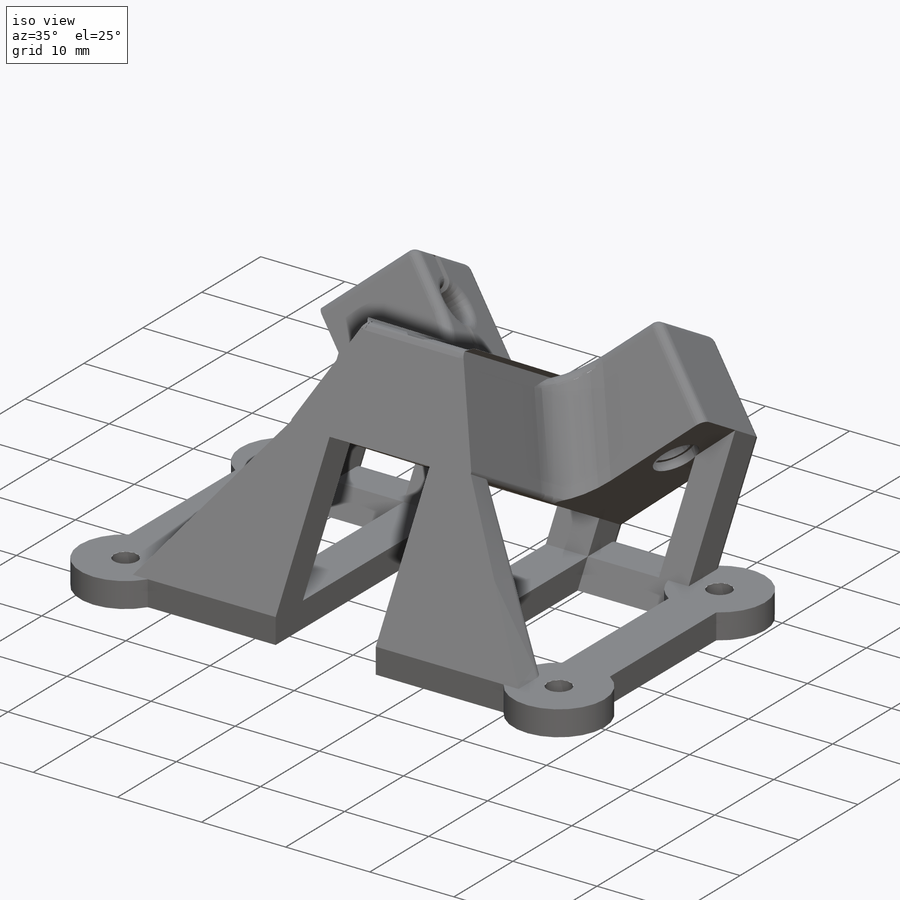
[diagram: iso view]
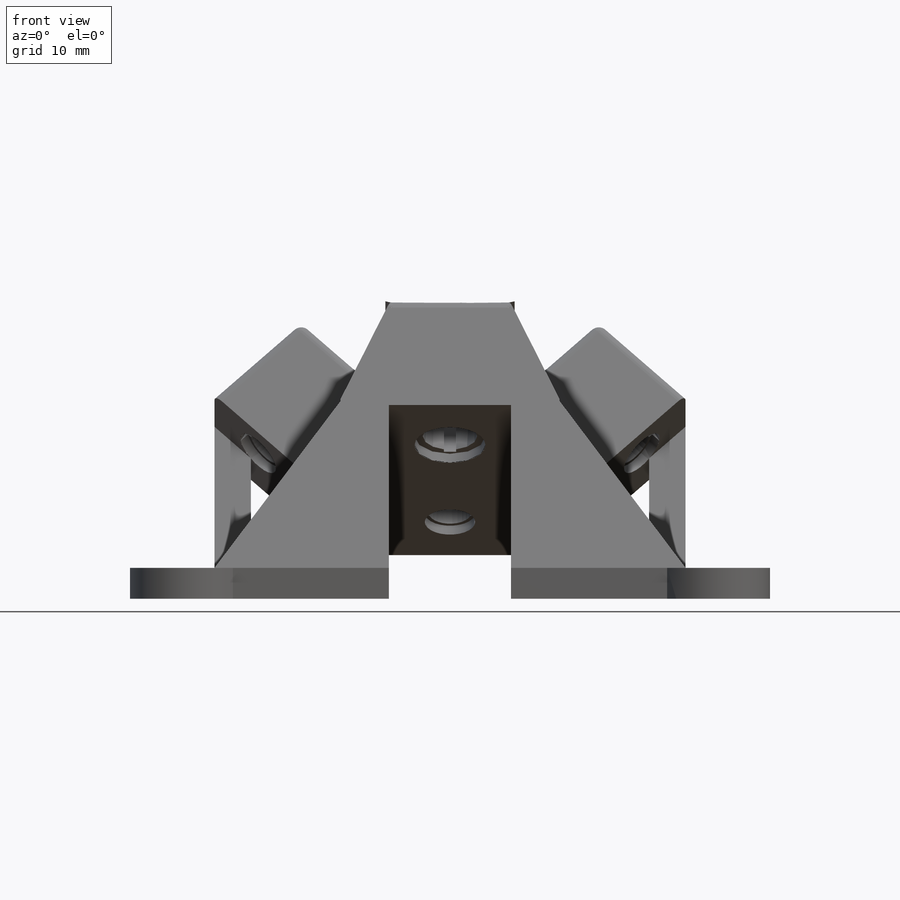
[diagram: front view]
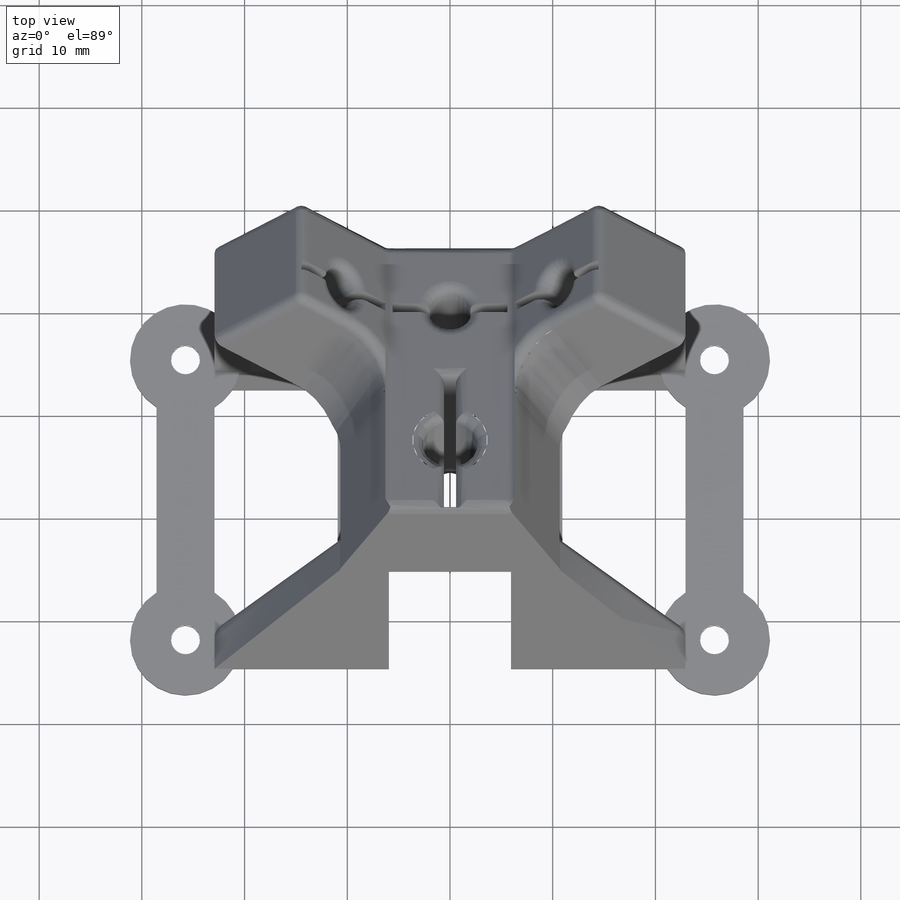
[diagram: top view]
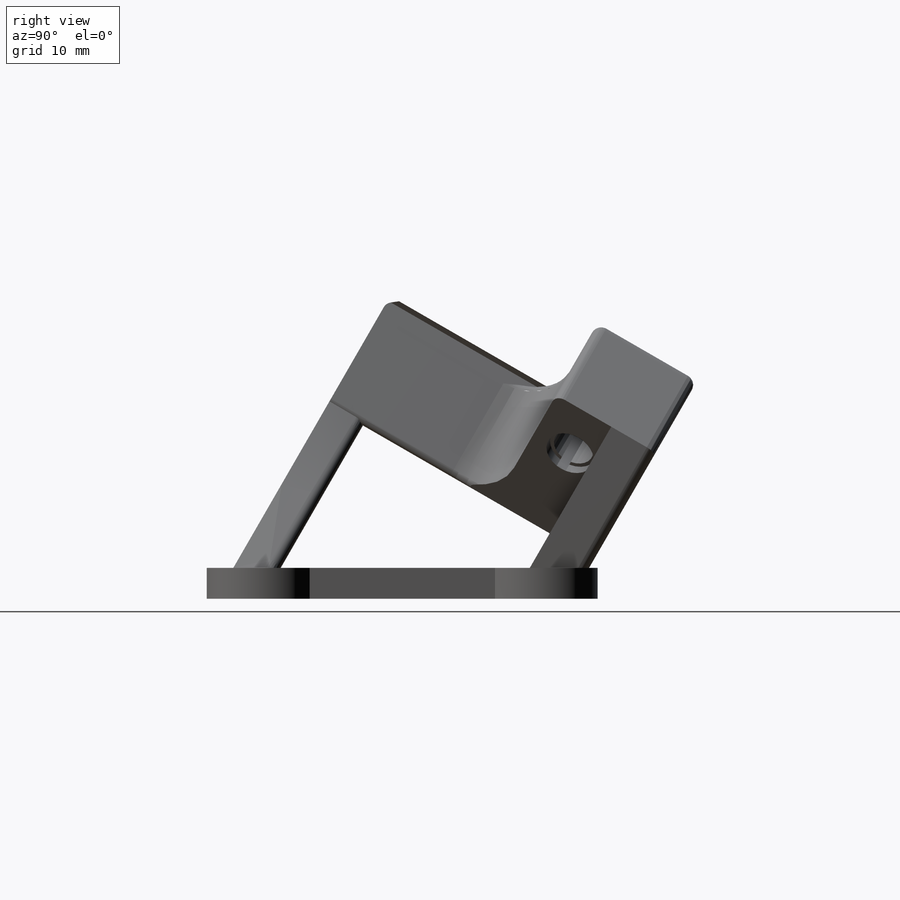
[diagram: right view]
SOLIDWORKS PART (.sldprt)
format: sldprt  version: not decoded by parser v0  size: 996,352 bytes
history: native  units: mm
features: sketch x20, cut_extrude x6, extrude x5, fillet x5, plane x4, mirror x4, pattern_circular x2, material x1 (+12 scaffold rows collapsed)
feature tree (59):
  scaffold x12  (default folders/planes/origin — collapsed)
  material  "Material <not specified>"
  sketch  "Sketch1"  dims[D1=57.15mm D2=~34.641016mm]
  extrude  "Boss-Extrude1"  Depth=3mm
  plane  "Plane3"
  sketch  "Sketch3"  dims[c1.D1=1.0mm c1.D2=12.0mm c1.D3=12.0mm c2.D3=135.0deg c2.D4=11.938mm c2.D5=11.938mm]
  extrude  "Boss-Extrude2"  Depth=30mm
  sketch  "Sketch6"  dims[D1=5.0mm]
  extrude  "Boss-Extrude5"  [1 undecoded]
  plane  "Plane6"
  sketch  "Sketch4"  dims[D1=4.0mm D2=5.0mm D3=5.0mm]
  extrude  "Boss-Extrude6"  [1 undecoded]
  plane  "Plane5"
  mirror  "Mirror1"
  sketch  "Sketch7"  dims[D1=5.3mm D2=4.1mm D3=15.0mm]
  cut_extrude  "Cut-Extrude1"  [1 undecoded]
  sketch  "Sketch8"  dims[D1=1.2mm D2=15.0mm]
  sketch  "Sketch9"  dims[D1=1.2mm]
  sketch  "Sketch10"  dims[c1.D1=2.65mm c1.D2=4.1mm c2.D1=0.8mm c2.D2=0.4mm]
  cut_extrude  "Cut-Extrude2"  Depth=1mm
  sketch  "Sketch12"
  pattern_circular  "CirPattern1"  Count=8 Angle=45deg
  sketch  "Sketch13"
  cut_extrude  "Cut-Extrude3"  [1 undecoded]
  sketch  "Sketch14"  dims[D1=40.0mm]
  cut_extrude  "Cut-Extrude4"  [1 undecoded]
  sketch  "Sketch15"  dims[D1=4.0mm]
  cut_extrude  "Cut-Extrude5"  [1 undecoded]
  sketch  "Sketch19"
  sketch  "Sketch16"  dims[D1=2.8067mm D2=3.0mm]
  sketch  "Sketch20"
  cut_extrude  "Cut-Extrude6"  Depth=10mm
  mirror  "Mirror2"
  fillet  "Fillet1"  Radius=1mm
  fillet  "Fillet2"  Radius=1mm
  sketch  "Sketch17"  dims[D1=4.0mm]
  plane  "Plane7"
  sketch  "Sketch21"
  mirror  "Mirror4"
  sketch  "Sketch22"  dims[D1=1.0mm D2=11.5mm]
  sketch  "Sketch24"
  pattern_circular  "CirPattern3"  Count=8 Angle=360deg
  sketch  "Sketch25"  dims[c1.D1=2.8067mm c1.D2=~10.459925mm c2.D1=4.0mm c2.D2=4.0mm]
  extrude  "Boss-Extrude7"  [1 undecoded]
  mirror  "Mirror5"
  fillet  "Fillet8"  Radius=5mm
  fillet  "Fillet9"  Radius=1mm
  fillet  "Fillet10"  Radius=0.5mm
decode coverage: 25 of 42 modeling features carry decoded parameters
note: ~ marks probable driven/reference dimensions
note: 7 parameter values undecoded
summary: no parameter record found for 7 features
note: suppression state not decoded; provenance and decode notes live in map.json
